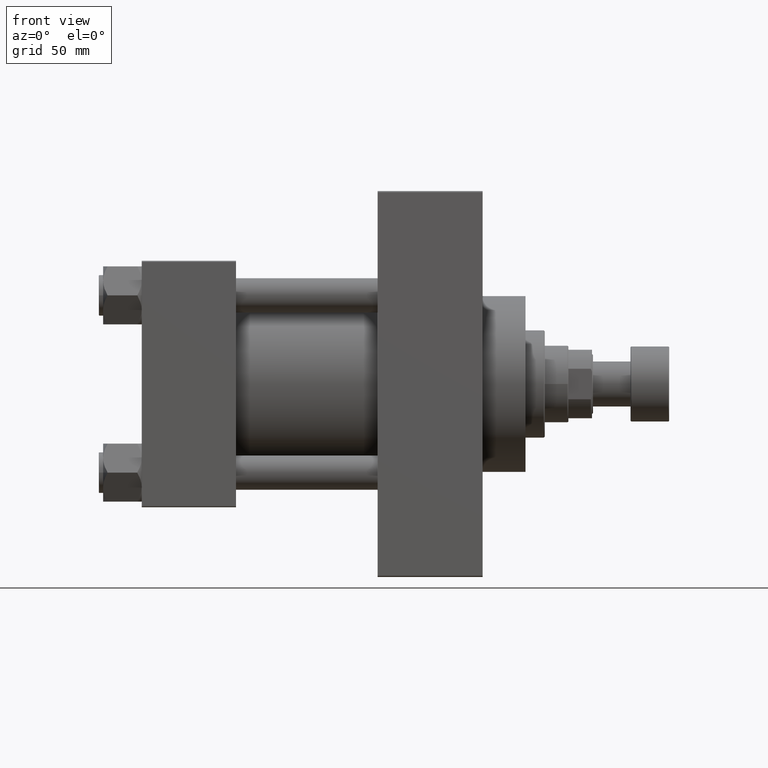
[diagram: clean part render]
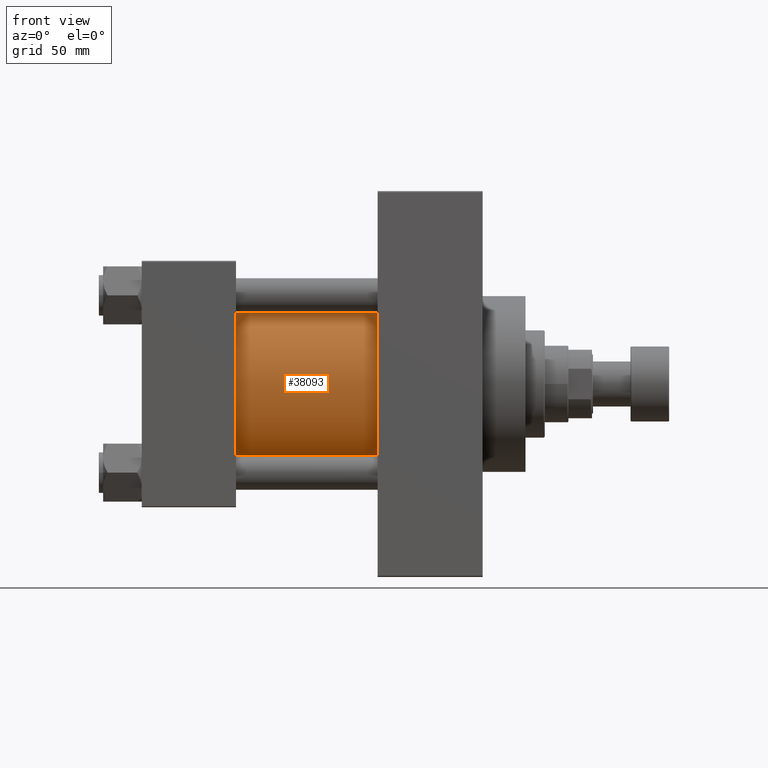
[diagram: same view with one face highlighted and labeled with its STEP entity id]
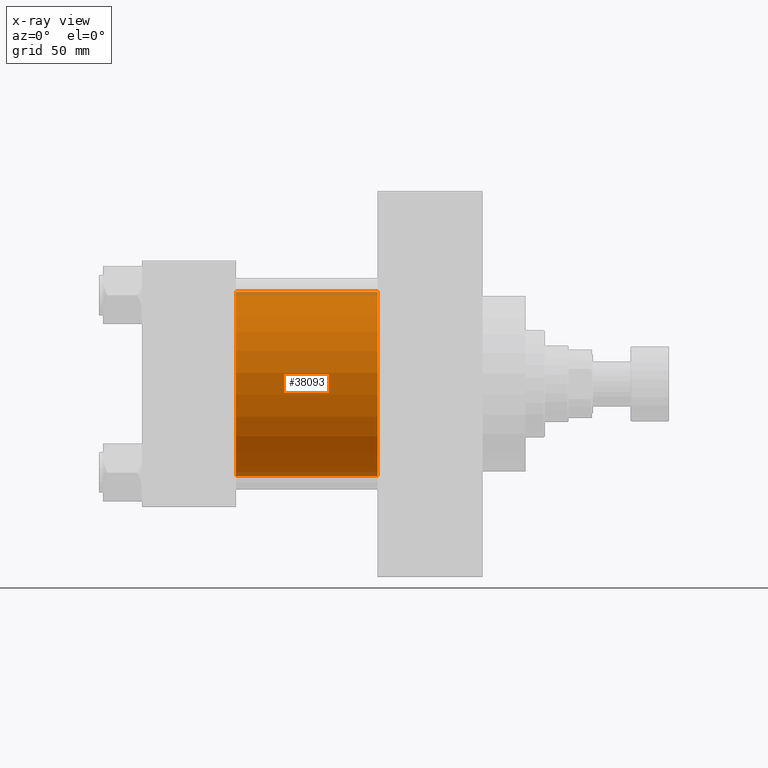
[diagram: x-ray of the same camera — body ghosted, the highlighted face saturated]
A machine part, front view. The second image highlights one B-rep face of the part: STEP entity #38093.
The next image is the same camera in x-ray: the body ghosted, the highlighted face saturated — about 4% of this face is hidden behind the body in this view.
In plain terms, the highlighted cylindrical surface (partial cylindrical patch) has radius 43 mm, axis along (-1, -0, -0).
Its self-contained STEP definition (entity closure, byte-faithful):
#438 = ORIENTED_EDGE ( 'NONE', *, *, #7404, .F. ) ;
#1446 = VERTEX_POINT ( 'NONE', #20311 ) ;
#3547 = DIRECTION ( 'NONE',  ( -1.000000000000000000, -0.000000000000000000, -0.000000000000000000 ) ) ;
#3922 = LINE ( 'NONE', #15599, #6486 ) ;
#4540 = DIRECTION ( 'NONE',  ( 1.000000000000000000, 0.000000000000000000, 0.000000000000000000 ) ) ;
#6486 = VECTOR ( 'NONE', #22179, 1000.000000000000000 ) ;
#7404 = EDGE_CURVE ( 'NONE', #31350, #8121, #46719, .T. ) ;
#8121 = VERTEX_POINT ( 'NONE', #28692 ) ;
#9226 = DIRECTION ( 'NONE',  ( 0.000000000000000000, 0.000000000000000000, 1.000000000000000000 ) ) ;
#10032 = VECTOR ( 'NONE', #17276, 1000.000000000000000 ) ;
#10212 = AXIS2_PLACEMENT_3D ( 'NONE', #33510, #4540, #37409 ) ;
#10367 = FACE_OUTER_BOUND ( 'NONE', #25688, .T. ) ;
#10610 = CARTESIAN_POINT ( 'NONE',  ( 110.0000000000000000, -2.602085213965210642E-15, 0.000000000000000000 ) ) ;
#12303 = EDGE_CURVE ( 'NONE', #48123, #31350, #35094, .T. ) ;
#13256 = AXIS2_PLACEMENT_3D ( 'NONE', #33096, #25803, #19221 ) ;
#14436 = EDGE_CURVE ( 'NONE', #1446, #8121, #44381, .T. ) ;
#15599 = CARTESIAN_POINT ( 'NONE',  ( 110.0000000000000000, -2.602085213965210642E-15, 43.00000000000000000 ) ) ;
#15703 = ORIENTED_EDGE ( 'NONE', *, *, #14436, .T. ) ;
#17276 = DIRECTION ( 'NONE',  ( -1.000000000000000000, -0.000000000000000000, -0.000000000000000000 ) ) ;
#18399 = CYLINDRICAL_SURFACE ( 'NONE', #18583, 43.00000000000000000 ) ;
#18583 = AXIS2_PLACEMENT_3D ( 'NONE', #10610, #3547, #9226 ) ;
#19221 = DIRECTION ( 'NONE',  ( 0.000000000000000000, 0.000000000000000000, 1.000000000000000000 ) ) ;
#20311 = CARTESIAN_POINT ( 'NONE',  ( 44.00000000000000000, -2.602085213965210642E-15, 43.00000000000000000 ) ) ;
#20865 = EDGE_CURVE ( 'NONE', #48123, #1446, #3922, .T. ) ;
#22179 = DIRECTION ( 'NONE',  ( -1.000000000000000000, -0.000000000000000000, -0.000000000000000000 ) ) ;
#23461 = CARTESIAN_POINT ( 'NONE',  ( 110.0000000000000000, -2.602085213965210642E-15, 43.00000000000000000 ) ) ;
#24701 = CARTESIAN_POINT ( 'NONE',  ( 110.0000000000000000, 2.663896022368408223E-15, -43.00000000000000000 ) ) ;
#25057 = CARTESIAN_POINT ( 'NONE',  ( 110.0000000000000000, 2.663896022368408223E-15, -43.00000000000000000 ) ) ;
#25688 = EDGE_LOOP ( 'NONE', ( #438, #43492, #34583, #15703 ) ) ;
#25803 = DIRECTION ( 'NONE',  ( 1.000000000000000000, -0.000000000000000000, 0.000000000000000000 ) ) ;
#28692 = CARTESIAN_POINT ( 'NONE',  ( 44.00000000000000000, 2.663896022368408223E-15, -43.00000000000000000 ) ) ;
#31350 = VERTEX_POINT ( 'NONE', #24701 ) ;
#33096 = CARTESIAN_POINT ( 'NONE',  ( 44.00000000000000000, -2.602085213965210642E-15, 0.000000000000000000 ) ) ;
#33510 = CARTESIAN_POINT ( 'NONE',  ( 110.0000000000000000, -2.602085213965210642E-15, 0.000000000000000000 ) ) ;
#34583 = ORIENTED_EDGE ( 'NONE', *, *, #20865, .T. ) ;
#35094 = CIRCLE ( 'NONE', #10212, 43.00000000000000000 ) ;
#37409 = DIRECTION ( 'NONE',  ( 0.000000000000000000, 0.000000000000000000, -1.000000000000000000 ) ) ;
#38093 = ADVANCED_FACE ( 'NONE', ( #10367 ), #18399, .T. ) ;
#43492 = ORIENTED_EDGE ( 'NONE', *, *, #12303, .F. ) ;
#44381 = CIRCLE ( 'NONE', #13256, 43.00000000000000000 ) ;
#46719 = LINE ( 'NONE', #25057, #10032 ) ;
#48123 = VERTEX_POINT ( 'NONE', #23461 ) ;